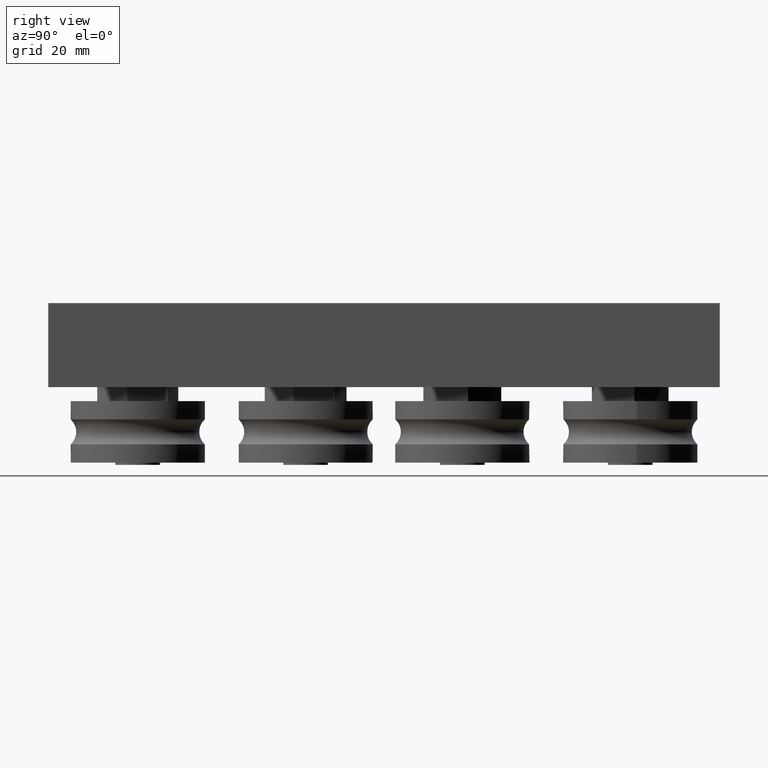
[diagram: clean part render]
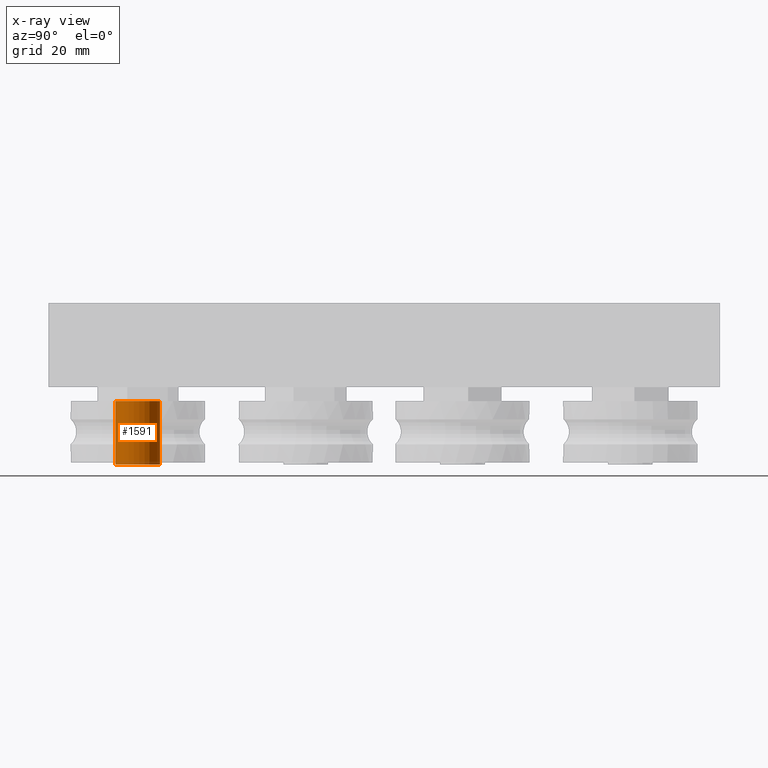
[diagram: x-ray — body ghosted, one internal face saturated and labeled with its STEP entity id]
A machine part, right view, then the same camera in x-ray: the body is ghosted and one INTERNAL B-rep face — a face not visible from any outside direction — is saturated and labeled: STEP entity #1591.
In plain terms, the highlighted cylindrical surface (bore or boss wall) has radius 4 mm, axis along (-0, -0, -1).
Its self-contained STEP definition (entity closure, byte-faithful):
#197=LINE('',#2876,#299);
#299=VECTOR('',#2379,4.);
#356=CYLINDRICAL_SURFACE('',#1965,4.);
#473=FACE_OUTER_BOUND('',#606,.T.);
#606=EDGE_LOOP('',(#1323,#1324,#1325,#1326));
#713=CIRCLE('',#1966,4.);
#714=CIRCLE('',#1967,4.);
#834=VERTEX_POINT('',#2873);
#835=VERTEX_POINT('',#2875);
#1008=EDGE_CURVE('',#834,#834,#713,.T.);
#1009=EDGE_CURVE('',#834,#835,#197,.T.);
#1010=EDGE_CURVE('',#835,#835,#714,.T.);
#1323=ORIENTED_EDGE('',*,*,#1008,.T.);
#1324=ORIENTED_EDGE('',*,*,#1009,.T.);
#1325=ORIENTED_EDGE('',*,*,#1010,.F.);
#1326=ORIENTED_EDGE('',*,*,#1009,.F.);
#1591=ADVANCED_FACE('',(#473),#356,.T.);
#1965=AXIS2_PLACEMENT_3D('',#2872,#2375,#2376);
#1966=AXIS2_PLACEMENT_3D('',#2874,#2377,#2378);
#1967=AXIS2_PLACEMENT_3D('',#2877,#2380,#2381);
#2375=DIRECTION('center_axis',(0.,-9.73879846162418E-17,1.));
#2376=DIRECTION('ref_axis',(0.,1.,9.73879846162418E-17));
#2377=DIRECTION('center_axis',(0.,-9.73879846162418E-17,1.));
#2378=DIRECTION('ref_axis',(1.,0.,0.));
#2379=DIRECTION('',(0.,-9.73879846162418E-17,1.));
#2380=DIRECTION('center_axis',(0.,0.,1.));
#2381=DIRECTION('ref_axis',(0.,1.,9.73879846162418E-17));
#2872=CARTESIAN_POINT('Origin',(0.,-5.55111512312578E-16,4.15));
#2873=CARTESIAN_POINT('',(4.89858719658941E-16,-4.,-1.55));
#2874=CARTESIAN_POINT('Origin',(0.,0.,-1.55));
#2875=CARTESIAN_POINT('',(4.89858719658941E-16,-4.,9.85));
#2876=CARTESIAN_POINT('',(4.89858719658941E-16,-4.,4.15));
#2877=CARTESIAN_POINT('Origin',(0.,-1.11022302462516E-15,9.85));